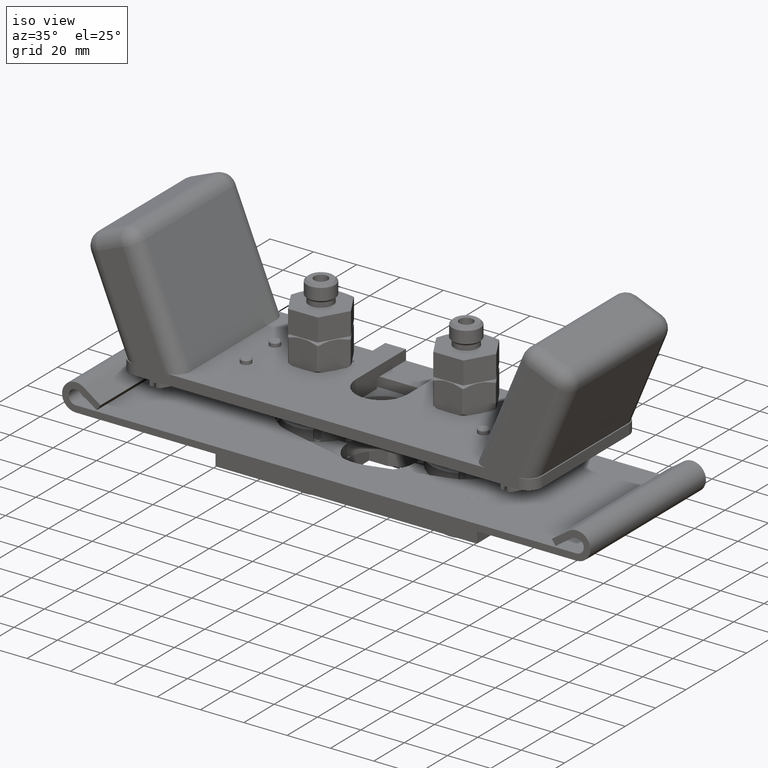
[diagram: clean part render]
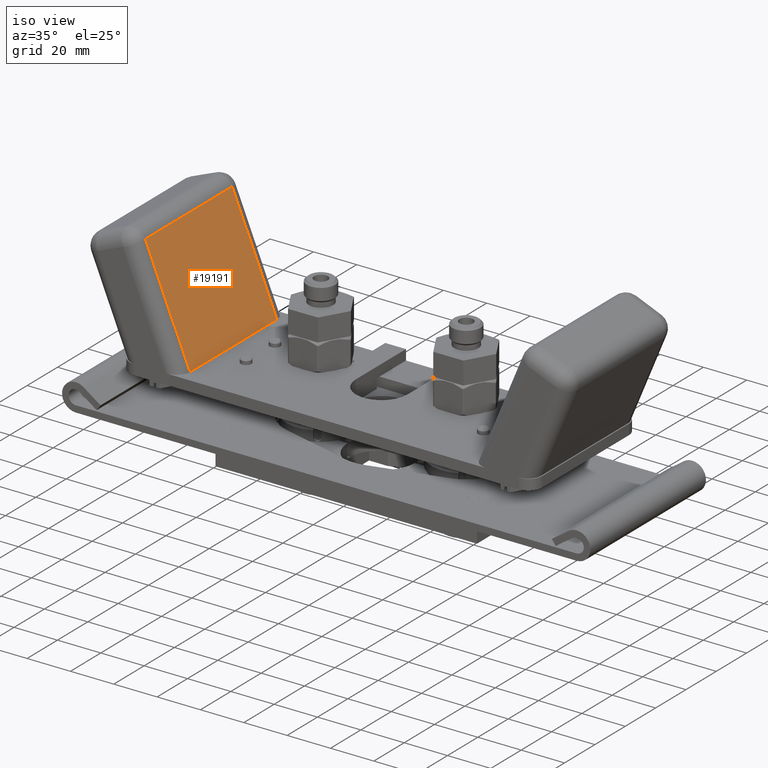
[diagram: same view with one face highlighted and labeled with its STEP entity id]
A machine part, iso view. The second image highlights one B-rep face of the part: STEP entity #19191.
In plain terms, the highlighted planar face has unit normal (0.9239, 0, 0.3827).
Its self-contained STEP definition (entity closure, byte-faithful):
#3465=CARTESIAN_POINT('',(-2.647E0,2.5E-1,1.0816E0));
#3478=DIRECTION('',(3.826834323652E-1,0.E0,-9.238795325112E-1));
#3479=VECTOR('',#3478,2.125E0);
#3480=CARTESIAN_POINT('',(-3.460202293776E0,2.5E-1,3.044844006586E0));
#3481=LINE('',#3480,#3479);
#3606=DIRECTION('',(-3.826834323652E-1,0.E0,9.238795325112E-1));
#3607=VECTOR('',#3606,2.125E0);
#3608=CARTESIAN_POINT('',(-2.647E0,2.5E0,1.0816E0));
#3609=LINE('',#3608,#3607);
#3610=DIRECTION('',(0.E0,-1.E0,0.E0));
#3611=VECTOR('',#3610,2.25E0);
#3612=CARTESIAN_POINT('',(-2.647E0,2.5E0,1.0816E0));
#3613=LINE('',#3612,#3611);
#3618=DIRECTION('',(1.361873576874E-14,-1.E0,-3.276391503783E-14));
#3619=VECTOR('',#3618,2.25E0);
#3620=CARTESIAN_POINT('',(-3.460202293776E0,2.5E0,3.044844006586E0));
#3621=LINE('',#3620,#3619);
#11564=VERTEX_POINT('',#3465);
#11565=CARTESIAN_POINT('',(-2.647E0,2.5E0,1.0816E0));
#11566=VERTEX_POINT('',#11565);
#11619=CARTESIAN_POINT('',(-3.460202293776E0,2.5E-1,3.044844006586E0));
#11620=VERTEX_POINT('',#11619);
#11640=CARTESIAN_POINT('',(-3.460202293776E0,2.5E0,3.044844006586E0));
#11641=VERTEX_POINT('',#11640);
#19179=CARTESIAN_POINT('',(-2.647E0,0.E0,1.0816E0));
#19180=DIRECTION('',(9.238795325113E-1,0.E0,3.826834323651E-1));
#19181=DIRECTION('',(0.E0,1.E0,0.E0));
#19182=AXIS2_PLACEMENT_3D('',#19179,#19180,#19181);
#19183=PLANE('',#19182);
#19184=ORIENTED_EDGE('',*,*,#18559,.T.);
#19185=ORIENTED_EDGE('',*,*,#18902,.F.);
#19187=ORIENTED_EDGE('',*,*,#19186,.F.);
#19188=ORIENTED_EDGE('',*,*,#19165,.F.);
#19189=EDGE_LOOP('',(#19184,#19185,#19187,#19188));
#19190=FACE_OUTER_BOUND('',#19189,.F.);
#18559=EDGE_CURVE('',#11566,#11564,#3613,.T.);
#18902=EDGE_CURVE('',#11620,#11564,#3481,.T.);
#19165=EDGE_CURVE('',#11566,#11641,#3609,.T.);
#19186=EDGE_CURVE('',#11641,#11620,#3621,.T.);
#19191=ADVANCED_FACE('',(#19190),#19183,.T.);